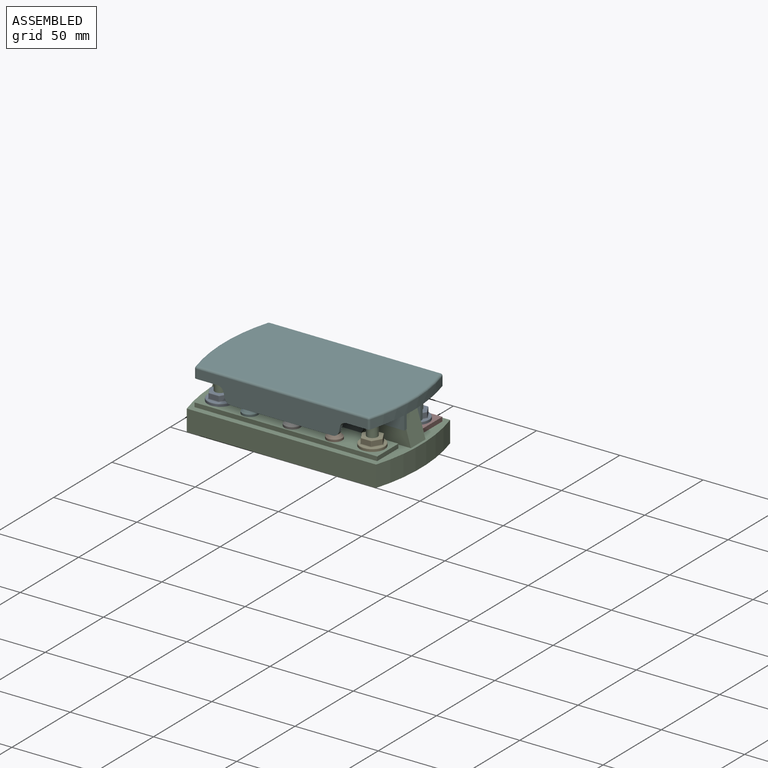
[diagram: assembled view]
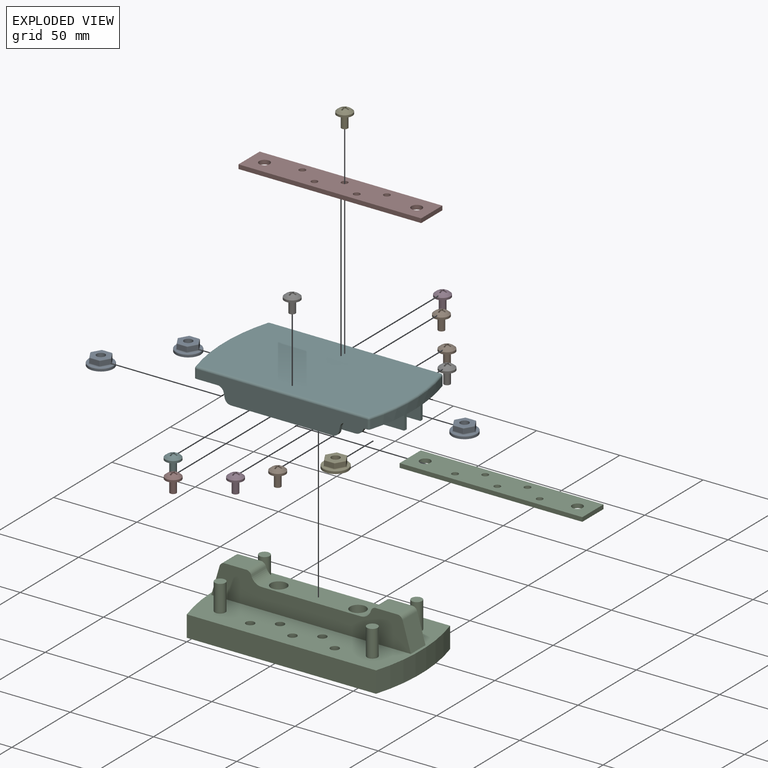
[diagram: exploded view]
GUIDED TOUR — MATED ASSEMBLY (Onshape document 580f8d0666ec9a1068392683, AutoMate assembly 580f8d0666ec9a1068392683_d71487eed5fffb27c4e7bcf7_9a2d0c5e2a98df7ca95f1406_default)

This assembly has 18 components, labeled P0..P17 below (a component is one placed occurrence of a part; the same part can appear more than once), held together by 21 mates. A mate is a constraint between two components; its type names the relative motion it leaves free:
  PARALLEL — keeps the two listed directions parallel,
  PLANAR — leaves sliding in the plane through the listed point (normal = the listed direction) and rotation about that normal free,
  REVOLUTE — leaves rotation about the listed axis free (a hinge).
Axis/direction vectors are unit vectors and 'through' points are millimeter coordinates, both in the assembly's world frame.

MATES
  1. REVOLUTE "Revolute 6": P9 <-> P15, axis (0.000, 0.000, -1.000) through (43.91, 46.80, 15.24) mm
  2. REVOLUTE "Revolute 17": P4 <-> P2, axis (0.000, 0.000, 1.000) through (102.55, 12.70, 15.24) mm
  3. PARALLEL "Parallel 1": P10 <-> P13, direction (0.000, -1.000, 0.000) through (56.83, 25.46, 12.70) mm
  4. REVOLUTE "Revolute 7": P12 <-> P15, axis (0.000, 0.000, -1.000) through (56.71, 54.42, 15.24) mm
  5. REVOLUTE "Revolute 18": P8 <-> P2, axis (0.000, 0.000, 1.000) through (11.11, 12.70, 15.24) mm
  6. REVOLUTE "Revolute 2": P15 <-> P10, axis (0.000, 0.000, 1.000) through (102.55, 50.80, 12.70) mm
  7. REVOLUTE "Revolute 16": P0 <-> P15, axis (0.000, 0.000, 1.000) through (102.55, 50.80, 15.24) mm
  8. PLANAR "Planar 1": P13 <-> P10, direction (0.000, 0.000, -1.000) through (57.07, 23.86, 12.70) mm
  9. REVOLUTE "Revolute 8": P15 <-> P17, axis (0.000, 0.000, 1.000) through (69.31, 46.80, 15.24) mm
  10. REVOLUTE "Revolute 14": P1 <-> P2, axis (0.000, 0.000, -1.000) through (82.36, 9.08, 15.24) mm
  11. REVOLUTE "Revolute 15": P16 <-> P15, axis (0.000, 0.000, 1.000) through (11.11, 50.80, 15.24) mm
  12. REVOLUTE "Revolute 1": P15 <-> P10, axis (0.000, 0.000, 1.000) through (11.11, 50.80, 12.70) mm
  13. REVOLUTE "Revolute 13": P3 <-> P2, axis (0.000, 0.000, -1.000) through (69.75, 16.70, 15.24) mm
  14. REVOLUTE "Revolute 11": P7 <-> P2, axis (0.000, 0.000, -1.000) through (44.35, 16.70, 15.24) mm
  15. REVOLUTE "Revolute 12": P6 <-> P2, axis (0.000, 0.000, -1.000) through (56.96, 9.08, 15.24) mm
  16. REVOLUTE "Revolute 5": P11 <-> P15, axis (0.000, 0.000, -1.000) through (31.31, 54.42, 15.24) mm
  17. REVOLUTE "Revolute 4": P10 <-> P2, axis (0.000, 0.000, -1.000) through (11.11, 12.70, 12.70) mm
  18. REVOLUTE "Revolute 9": P14 <-> P15, axis (0.000, 0.000, -1.000) through (82.11, 54.42, 15.24) mm
  19. REVOLUTE "Revolute 10": P2 <-> P5, axis (0.000, 0.000, 1.000) through (31.56, 9.08, 15.24) mm
  20. PLANAR "Planar 2": P13 <-> P10, direction (0.000, 1.000, 0.000) through (95.71, 63.50, 30.35) mm
  21. REVOLUTE "Revolute 3": P2 <-> P10, axis (0.000, 0.000, 1.000) through (102.55, 12.70, 12.70) mm

ASSEMBLY ORDER
  1. P13 — the base component [order verified]
  2. P12 [order verified]
  3. P6 [order verified]
  4. P15 [order verified]
  5. P9 [order verified]
  6. P17 [order verified]
  7. P3 [order verified]
  8. P7 [order verified]
  9. P8 [order verified]
  10. P4 [order verified]
  11. P16 [order verified]
  12. P0 [order verified]
  13. P2 [order verified]
  14. P14 [order verified]
  15. P11 [order verified]
  16. P10 [order verified]
  17. P5 [order verified]
  18. P1 [order verified]
Order-tag legend:
  [order verified] — this step's position reverses a verified removal order: the component was checked to insert without passing through the ones already placed.

Of the 18 components, 2 carry the full construction recipe — the FeatureScript program that regenerates the part's solid from scratch; the rest are supplied as boundary geometry only.
Because this assembly has more than 12 components, the tour below covers the 12 most significant ones individually (every recipe-attached component first, then the largest by part volume), in assembly order; the remaining 6 are summarized together in a grouped section at the end.
Each toured component is shown spotlighted twice — in the assembled view, then in the exploded view, where a leader line traces a displaced component back to its assembled socket (saturated green if recipe-attached, orange if geometry-only; every other component desaturated gray) — followed by its recipe or geometry summary and the mates that hold it.
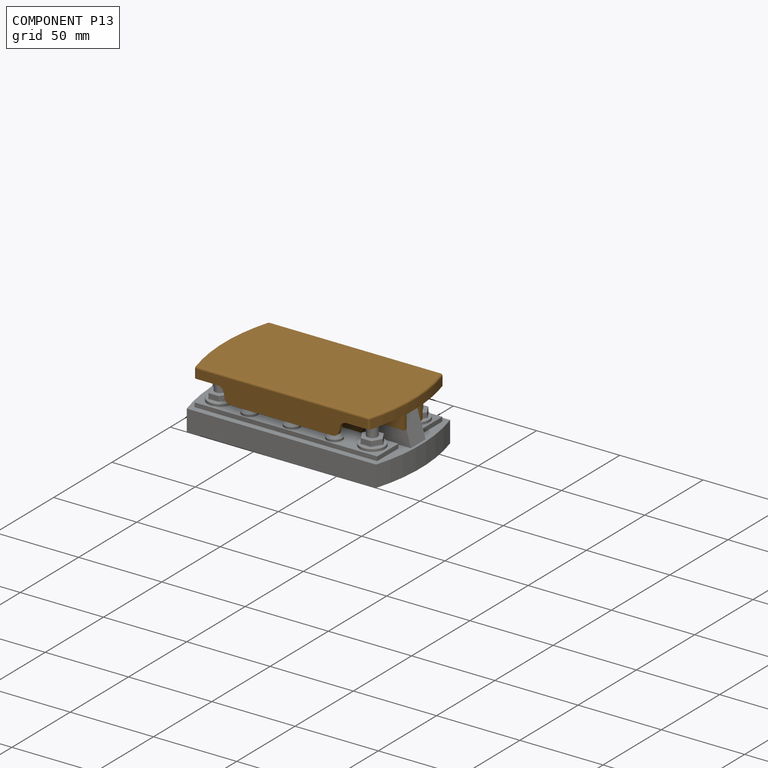
[diagram: component P13 — assembled]
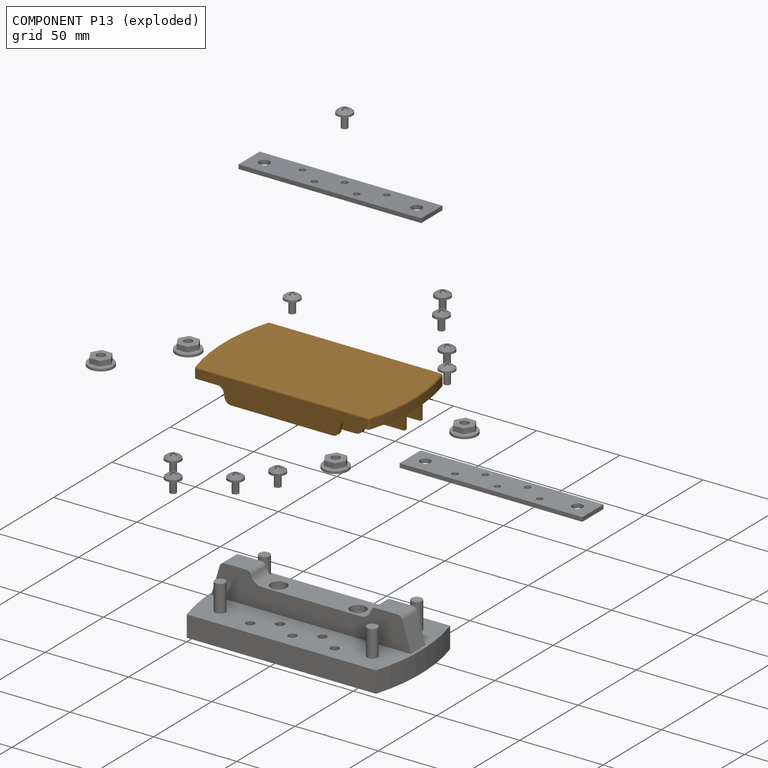
[diagram: component P13 — exploded]
COMPONENT P13 — geometry summary (no construction recipe available for this part):
  bounding box: 132.0 x 66.8 x 24.3 mm
  B-rep topology: 1 solid, 68 faces, 376 edges
  volume: 28992 mm^3 (14% of its bounding box)
  symmetry: 2-fold rotationally symmetric about the z axis; mirror-symmetric across its x mid-plane, y mid-plane
Held by: PARALLEL mate "Parallel 1" to P10; PLANAR mate "Planar 1" to P10; PLANAR mate "Planar 2" to P10.
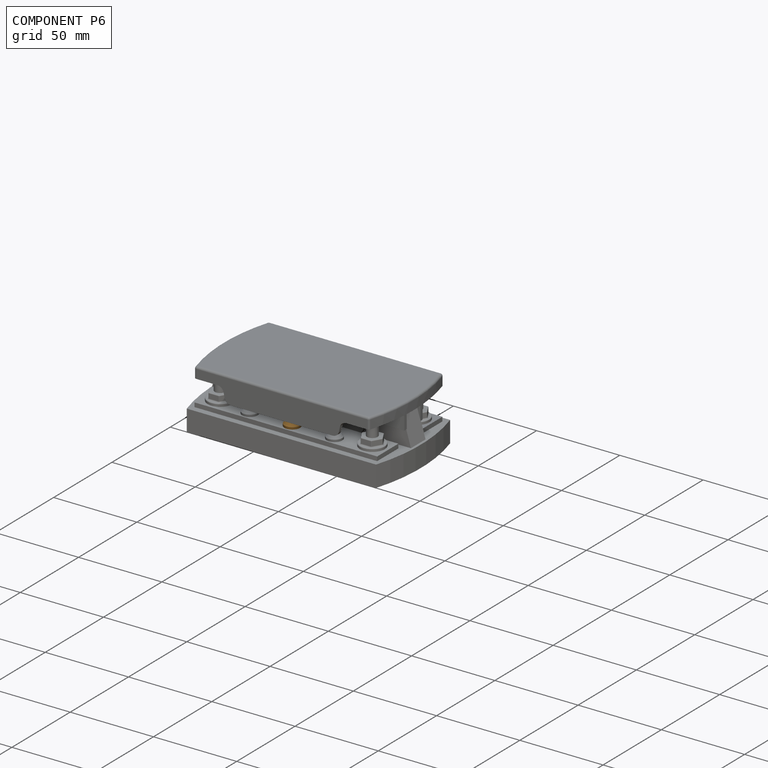
[diagram: component P6 — assembled]
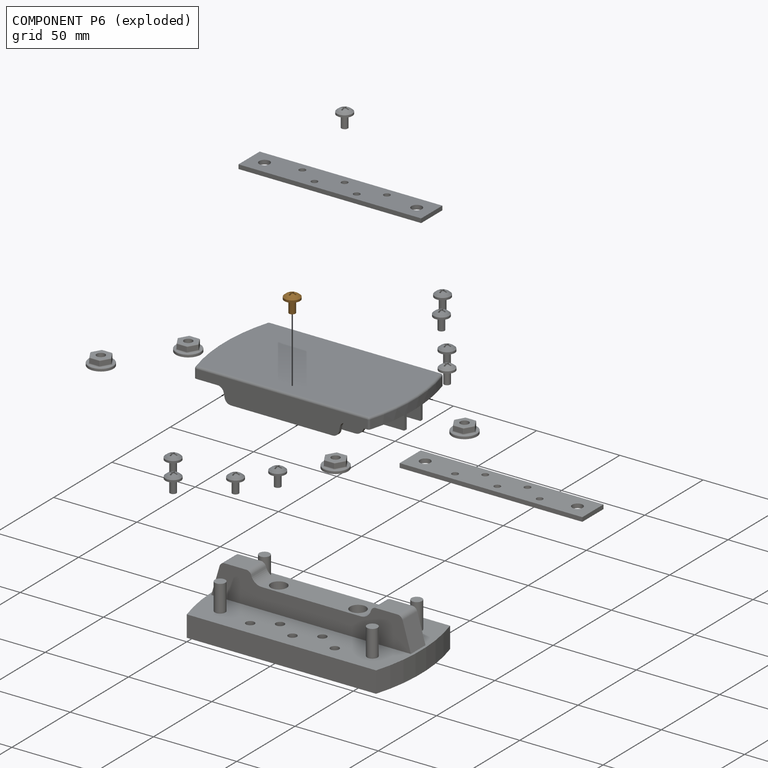
[diagram: component P6 — exploded]
COMPONENT P6 — geometry summary (no construction recipe available for this part):
  bounding box: 10.8 x 9.3 x 9.3 mm
  B-rep topology: 1 solid, 26 faces, 136 edges
  volume: 237 mm^3 (25% of its bounding box)
  symmetry: 4-fold rotationally symmetric about the z axis; mirror-symmetric across its x mid-plane, y mid-plane
Held by: REVOLUTE mate "Revolute 12" to P2.
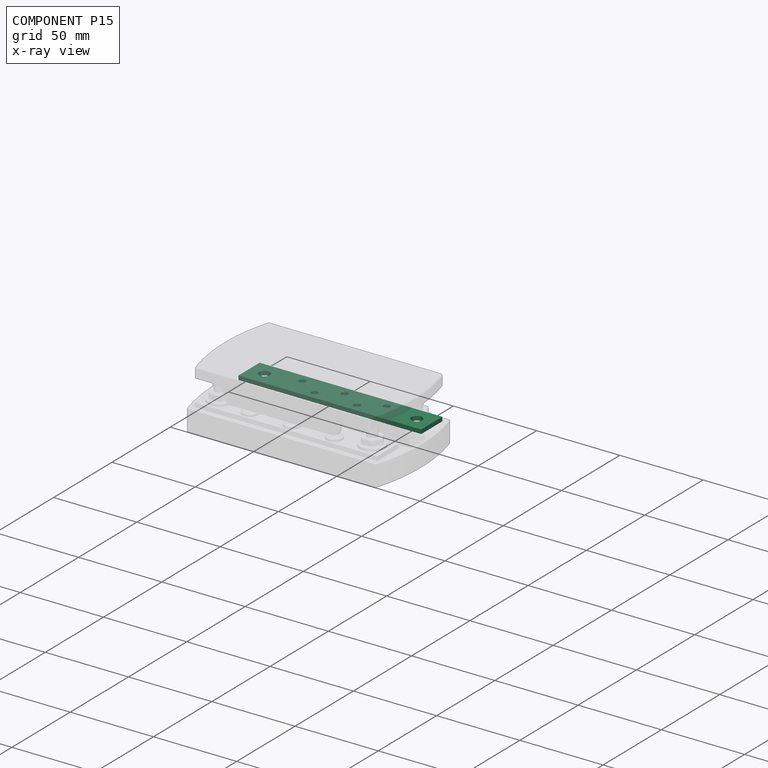
[diagram: component P15 — x-ray view]
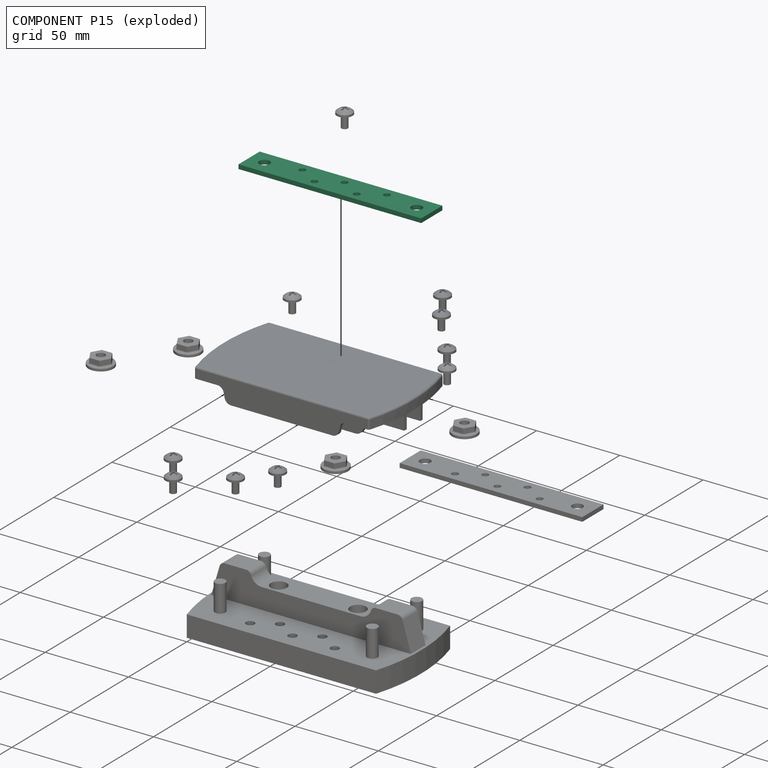
[diagram: component P15 — exploded]
COMPONENT P15 — same part as P2 (CADFS 00299274); its construction recipe is shown at P2.
Held by: REVOLUTE mate "Revolute 6" to P9; REVOLUTE mate "Revolute 7" to P12; REVOLUTE mate "Revolute 2" to P10; REVOLUTE mate "Revolute 16" to P0; REVOLUTE mate "Revolute 8" to P17; REVOLUTE mate "Revolute 15" to P16; REVOLUTE mate "Revolute 1" to P10; REVOLUTE mate "Revolute 5" to P11; REVOLUTE mate "Revolute 9" to P14.
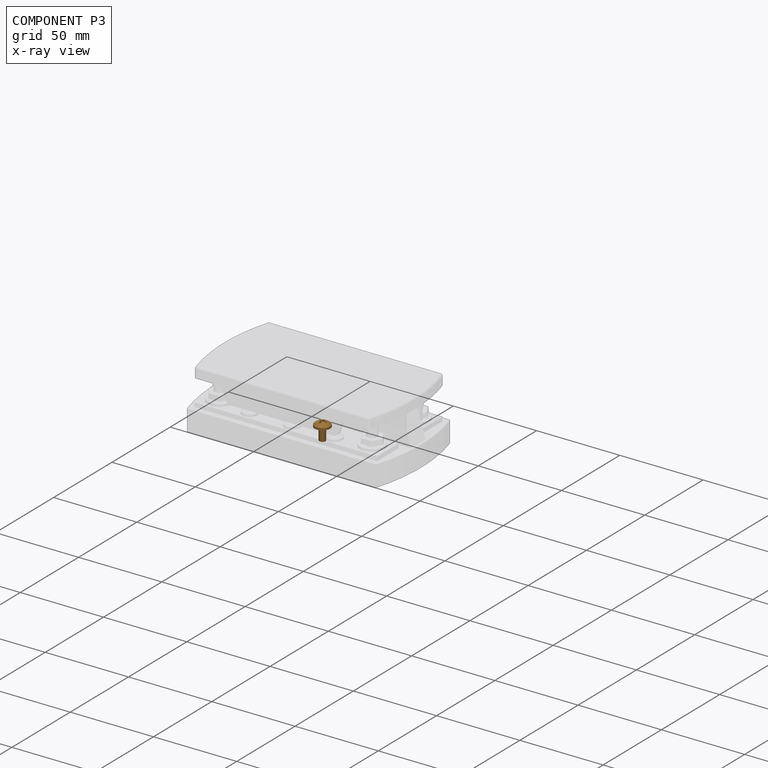
[diagram: component P3 — x-ray view]
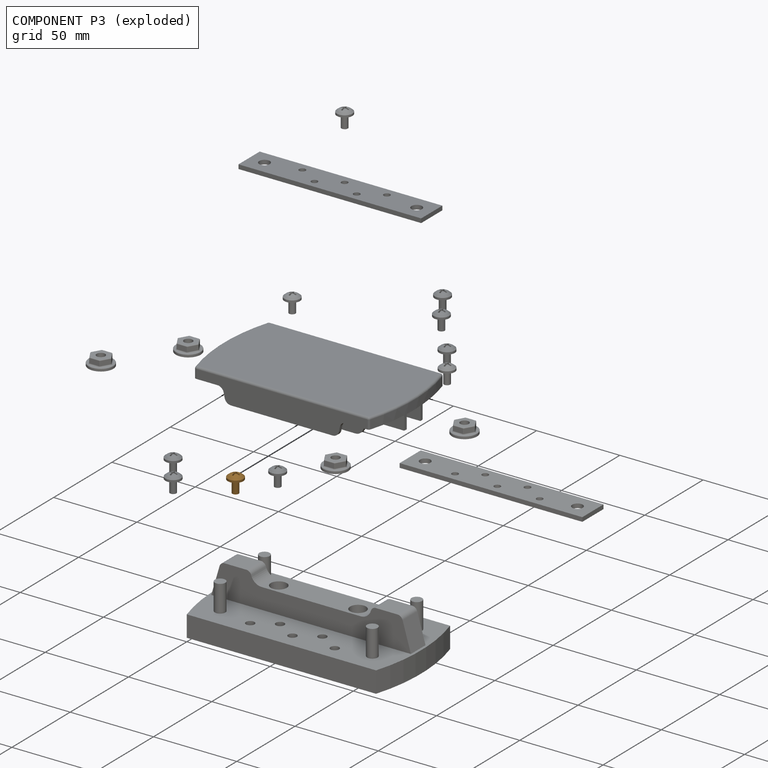
[diagram: component P3 — exploded]
COMPONENT P3 — geometry summary (no construction recipe available for this part):
  bounding box: 10.8 x 9.3 x 9.3 mm
  B-rep topology: 1 solid, 26 faces, 136 edges
  volume: 237 mm^3 (25% of its bounding box)
  symmetry: 4-fold rotationally symmetric about the z axis; mirror-symmetric across its x mid-plane, y mid-plane
Held by: REVOLUTE mate "Revolute 13" to P2.
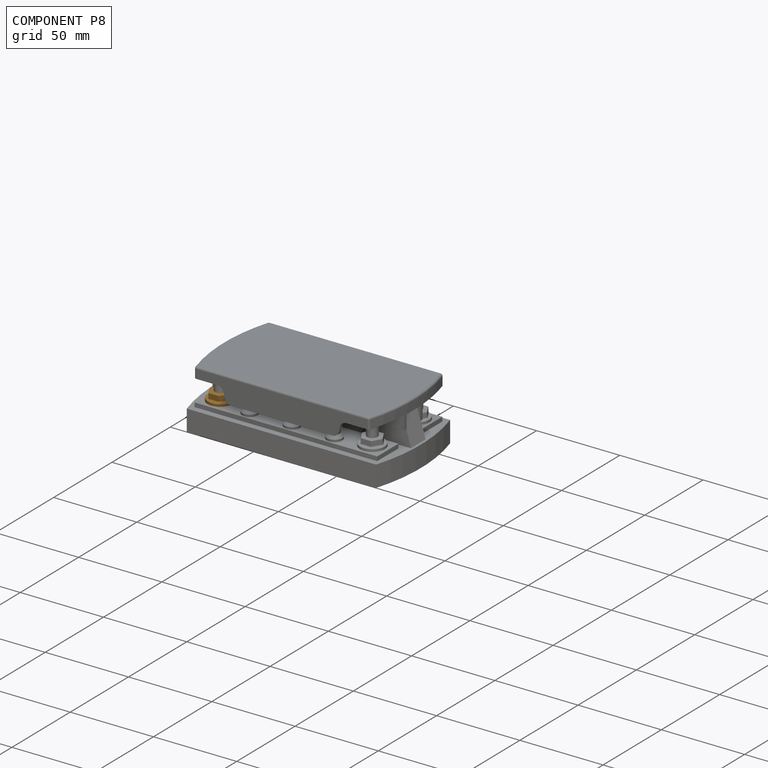
[diagram: component P8 — assembled]
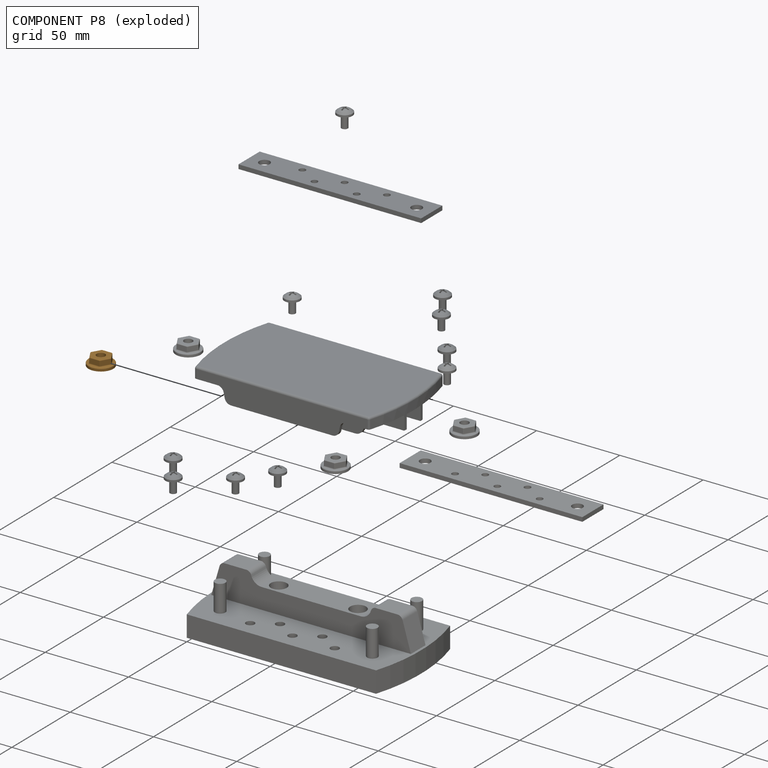
[diagram: component P8 — exploded]
COMPONENT P8 — geometry summary (no construction recipe available for this part):
  bounding box: 16.1 x 16.1 x 5.5 mm
  B-rep topology: 1 solid, 42 faces, 176 edges
  volume: 578 mm^3 (40% of its bounding box)
  symmetry: 6-fold rotationally symmetric about the z axis; mirror-symmetric across its x mid-plane, y mid-plane
Held by: REVOLUTE mate "Revolute 18" to P2.
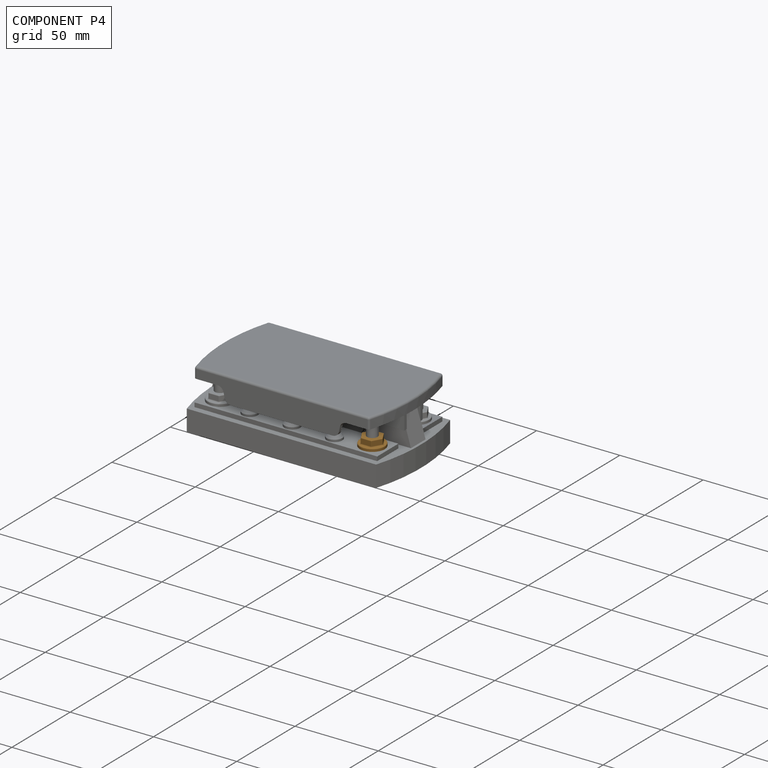
[diagram: component P4 — assembled]
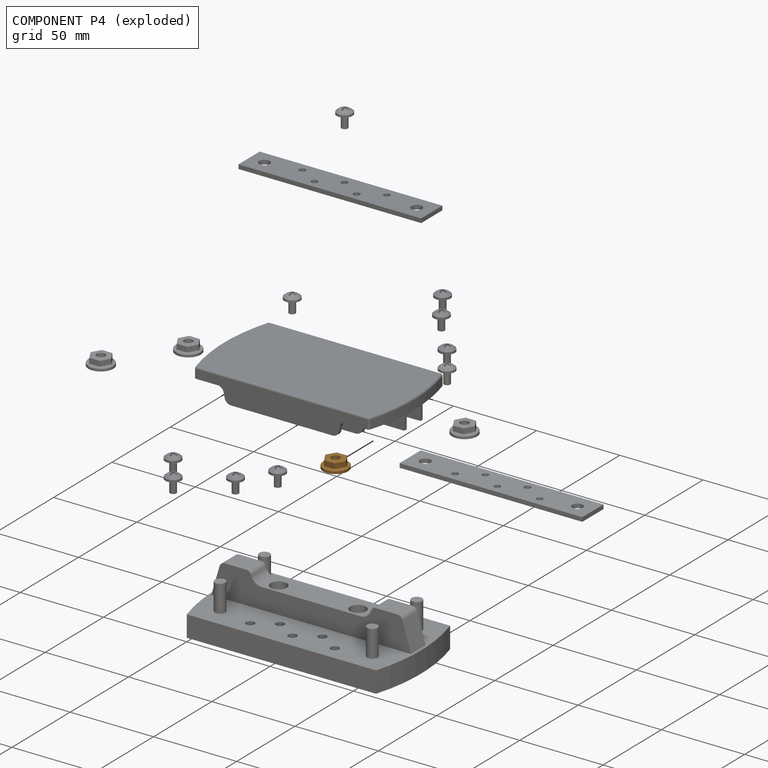
[diagram: component P4 — exploded]
COMPONENT P4 — geometry summary (no construction recipe available for this part):
  bounding box: 16.1 x 16.1 x 5.5 mm
  B-rep topology: 1 solid, 42 faces, 176 edges
  volume: 578 mm^3 (40% of its bounding box)
  symmetry: 6-fold rotationally symmetric about the z axis; mirror-symmetric across its x mid-plane, y mid-plane
Held by: REVOLUTE mate "Revolute 17" to P2.
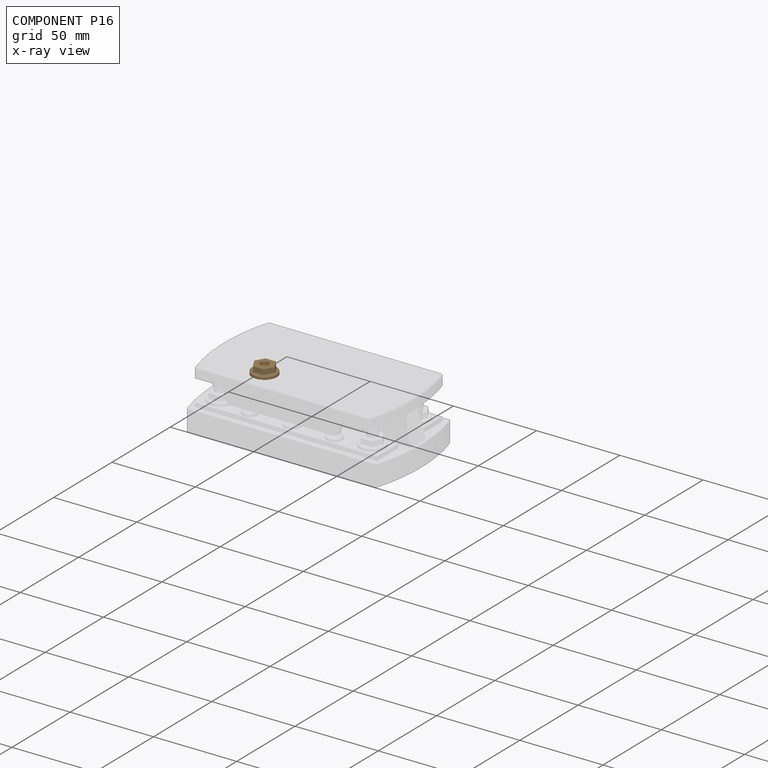
[diagram: component P16 — x-ray view]
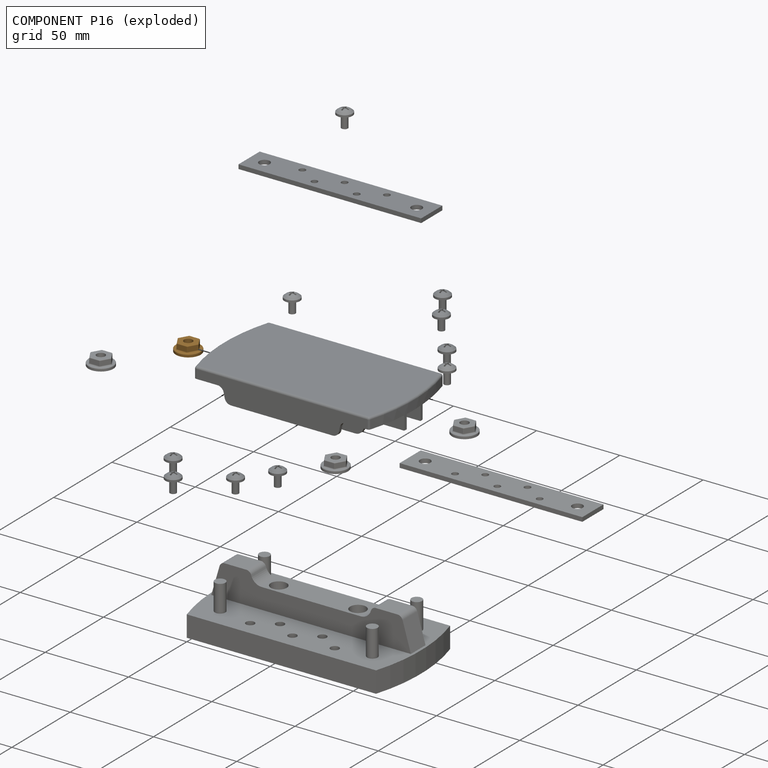
[diagram: component P16 — exploded]
COMPONENT P16 — geometry summary (no construction recipe available for this part):
  bounding box: 16.1 x 16.1 x 5.5 mm
  B-rep topology: 1 solid, 42 faces, 176 edges
  volume: 578 mm^3 (40% of its bounding box)
  symmetry: 6-fold rotationally symmetric about the z axis; mirror-symmetric across its x mid-plane, y mid-plane
Held by: REVOLUTE mate "Revolute 15" to P15.
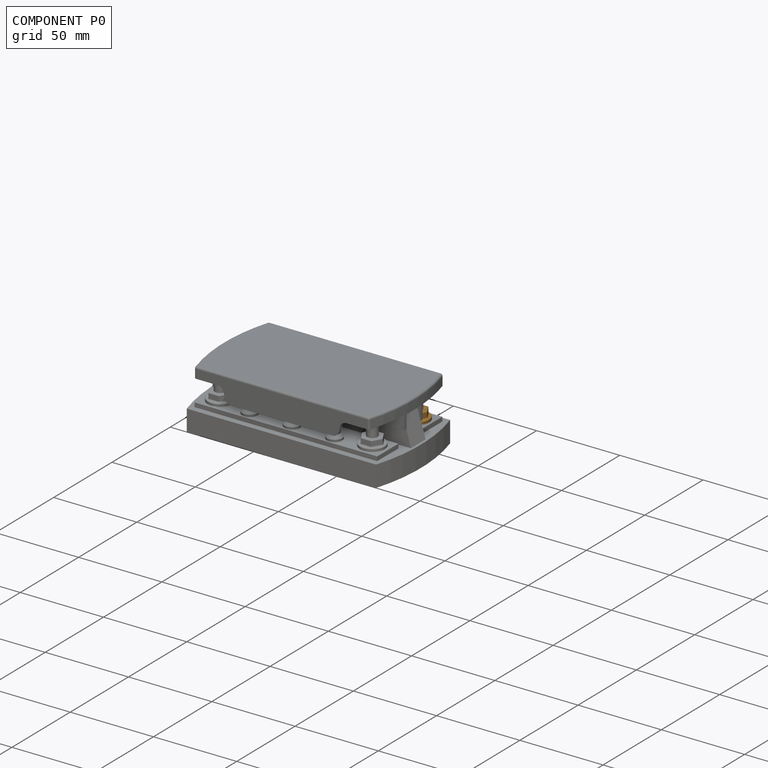
[diagram: component P0 — assembled]
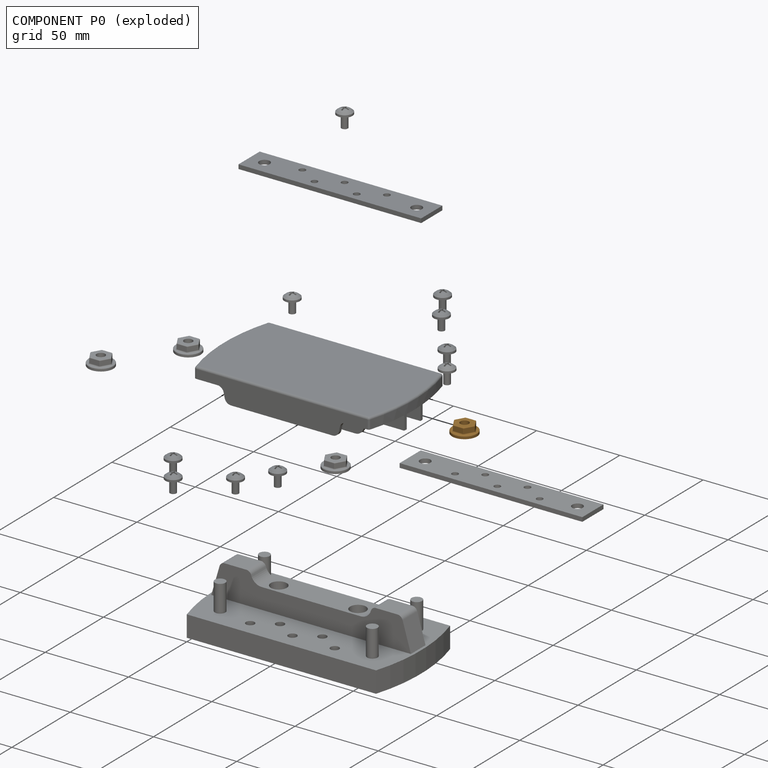
[diagram: component P0 — exploded]
COMPONENT P0 — geometry summary (no construction recipe available for this part):
  bounding box: 16.1 x 16.1 x 5.5 mm
  B-rep topology: 1 solid, 42 faces, 176 edges
  volume: 578 mm^3 (40% of its bounding box)
  symmetry: 6-fold rotationally symmetric about the z axis; mirror-symmetric across its x mid-plane, y mid-plane
Held by: REVOLUTE mate "Revolute 16" to P15.
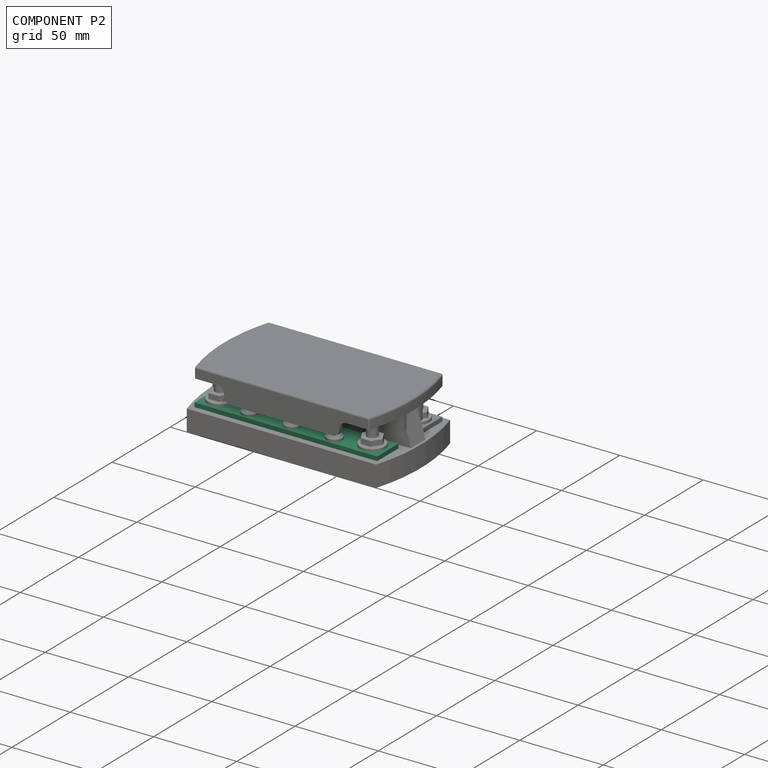
[diagram: component P2 — assembled]
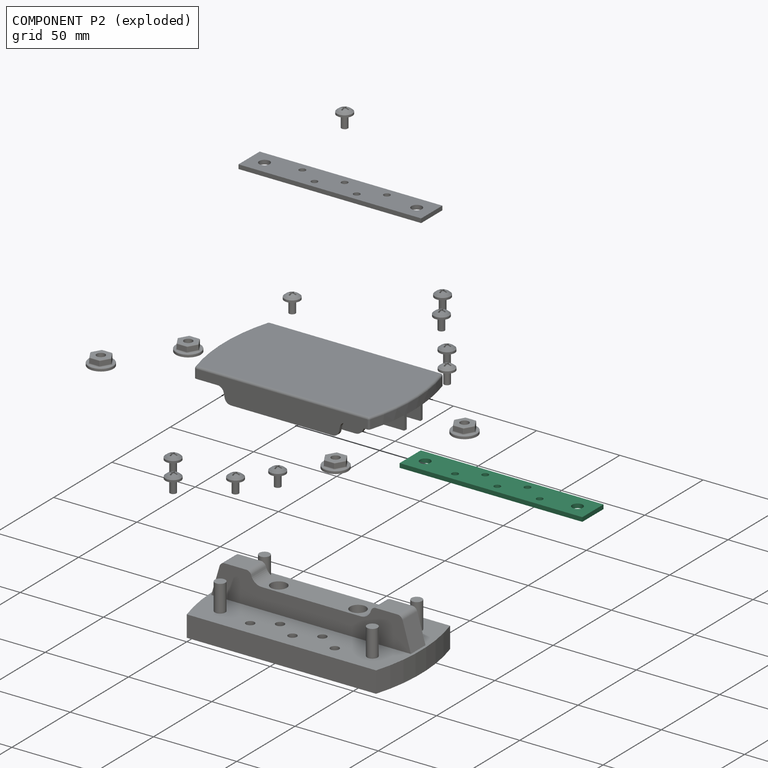
[diagram: component P2 — exploded]
COMPONENT P2 — recipe-attached (CADFS 00299274, mesh-verified: the recipe's output STEP matches this component's geometry to below the mesh-comparison resolution (tessellation chordal tolerance ~0.167 mm)).
Held by: REVOLUTE mate "Revolute 17" to P4; REVOLUTE mate "Revolute 18" to P8; REVOLUTE mate "Revolute 14" to P1; REVOLUTE mate "Revolute 13" to P3; REVOLUTE mate "Revolute 11" to P7; REVOLUTE mate "Revolute 12" to P6; REVOLUTE mate "Revolute 4" to P10; REVOLUTE mate "Revolute 10" to P5; REVOLUTE mate "Revolute 3" to P10.
Construction recipe (FeatureScript — the CAD program that rebuilds this solid; sketch coordinates are in the units given by the * unit suffixes, e.g. mm):

FeatureScript 1634;
import(path : "onshape/std/geometry.fs", version : "1634.0");
import(path : "onshape/std/common.fs", version : "1634.0");
const mm = millimeter;
const VERTEX = EntityType.VERTEX;
const EDGE = EntityType.EDGE;
const FACE = EntityType.FACE;
const BODY = EntityType.BODY;
function v(x, y){return vector(x, y);}
function OD(order){return orderDisambiguation(order);}
function OSD(set){return originalSetDisambiguation(set);}
function TD(topology){return topologyDisambiguation(topology);}
function TDD(query){return trueDependencyDisambiguation(query);}
function sQuery(a, b, c) {return sketchEntityQuery(a, b, c);}

annotation { "Feature Type Name" : "Feature", "Feature Type Description" : "" }
export const myFeature = defineFeature(function(context is Context, id is Id, definition is map)
    precondition{}
    {
        {
            var Q0;
            Q0=qCreatedBy(makeId("Top.planeOp"),FACE);
            var sketch = newSketch(context, id + "F0", { "sketchPlane" : qUnion([Q0])});
            skLineSegment(sketch, "E0.bottom", {"start": v(0, 0) * mm, "end": v(109.73, 0) * mm});
            skLineSegment(sketch, "E0.top", {"start": v(0, 18.16) * mm, "end": v(109.73, 18.16) * mm});
            skLineSegment(sketch, "E0.left", {"start": v(0, 0) * mm, "end": v(0, 18.16) * mm});
            skLineSegment(sketch, "E0.right", {"start": v(109.73, 0) * mm, "end": v(109.73, 18.16) * mm});
            skSolve(sketch);
        }
        {
            var Q0;
            Q0 = qSketchRegion(id + "F0", true);
            extrude(context, id + "F1", {"entities" : qUnion([Q0]), "depth" : 2.54 * mm});
        }
        {
            var Q0;
            Q0=makeQuery(id+"F1.opExtrude","CAP_FACE",FACE,{"disambiguationData":[OSD([sQuery(id+"F0.wireOp",EDGE,"E0.bottom"),sQuery(id+"F0.wireOp",EDGE,"E0.top"),sQuery(id+"F0.wireOp",EDGE,"E0.left"),sQuery(id+"F0.wireOp",EDGE,"E0.right")])],"isStart":false});
            var sketch = newSketch(context, id + "F2", { "sketchPlane" : qUnion([Q0])});
            skCircle(sketch, "E1", {"center": v(9.27, 9.08) * mm, "radius": 3.18 * mm});
            skCircle(sketch, "E2", {"center": v(100.71, 9.08) * mm, "radius": 3.18 * mm});
            skLineSegment(sketch, "E3", {"start": v(0, 9.08) * mm, "end": v(9.27, 9.08) * mm, "construction": true});
            skSolve(sketch);
        }
        {
            var Q0;
            Q0 = qSketchRegion(id + "F2", true);
            extrude(context, id + "F3", {"entities" : qUnion([Q0]), "operationType" : NewBodyOperationType.REMOVE, "endBound" : BoundingType.THROUGH_ALL, "oppositeDirection" : true, "depth" : 25.4 * mm});
        }
        {
            var Q0;
            Q0=makeQuery(id+"F1.opExtrude","CAP_FACE",FACE,{"disambiguationData":[OSD([sQuery(id+"F0.wireOp",EDGE,"E0.bottom"),sQuery(id+"F0.wireOp",EDGE,"E0.top"),sQuery(id+"F0.wireOp",EDGE,"E0.left"),sQuery(id+"F0.wireOp",EDGE,"E0.right")])],"isStart":false});
            var sketch = newSketch(context, id + "F4", { "sketchPlane" : qUnion([Q0])});
            skPoint(sketch, "E4", {"position": v(29.46, 12.7) * mm});
            skPoint(sketch, "E5", {"position": v(42.07, 5.08) * mm});
            skPoint(sketch, "E6", {"position": v(54.86, 12.7) * mm});
            skPoint(sketch, "E7", {"position": v(67.47, 5.08) * mm});
            skPoint(sketch, "E8", {"position": v(80.26, 12.7) * mm});
            skLineSegment(sketch, "E9", {"start": v(54.86, 0) * mm, "end": v(54.86, 12.7) * mm, "construction": true});
            skSolve(sketch);
        }
        {
            var Q0;
            Q0=sQuery(id+"F4.wireOp",VERTEX,"E4");
            var Q1;
            Q1=sQuery(id+"F4.wireOp",VERTEX,"E5");
            var Q2;
            Q2=sQuery(id+"F4.wireOp",VERTEX,"E6");
            var Q3;
            Q3=sQuery(id+"F4.wireOp",VERTEX,"E7");
            var Q4;
            Q4=sQuery(id+"F4.wireOp",VERTEX,"E8");
            var Q5;
            Q5=makeQuery(id+"F1.opExtrude","SWEPT_BODY",BODY,{"disambiguationData":[OSD([sQuery(id+"F0.wireOp",EDGE,"E0.bottom"),sQuery(id+"F0.wireOp",EDGE,"E0.top"),sQuery(id+"F0.wireOp",EDGE,"E0.left"),sQuery(id+"F0.wireOp",EDGE,"E0.right")])]});
            hole(context, id + "F5", {"style" : HoleStyle.SIMPLE, "endStyle" : HoleEndStyle.THROUGH, "standardTappedOrClearance" : lookupTablePath({ "standard" : "ANSI", "engagement" : "75%", "pitch" : "24 tpi", "size" : "#10", "type" : "Tapped" }), "standardBlindInLast" : lookupTablePath({ "standard" : "ANSI", "engagement" : "75%", "pitch" : "24 tpi", "size" : "#10", "type" : "Tapped" }), "holeDiameter" : 3.8 * mm, "showTappedDepth" : true, "isTappedThrough" : true, "tappedDepth" : 2.77 * mm, "tapClearance" : 3, "startFromSketch" : true, "locations" : qUnion([Q0, Q1, Q2, Q3, Q4]), "scope" : qUnion([Q5]), "majorDiameter" : 4.83 * mm});
        }
    });
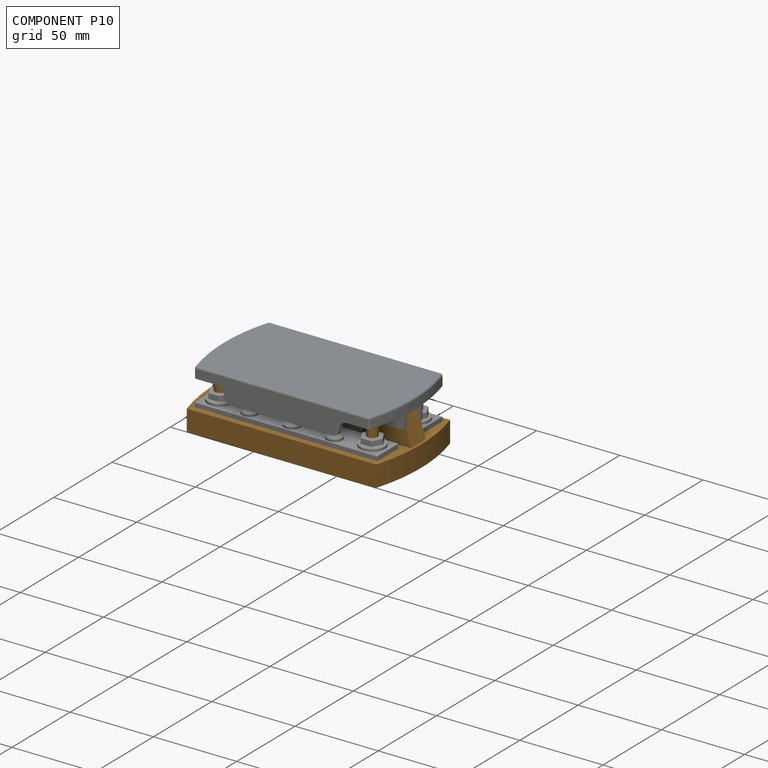
[diagram: component P10 — assembled]
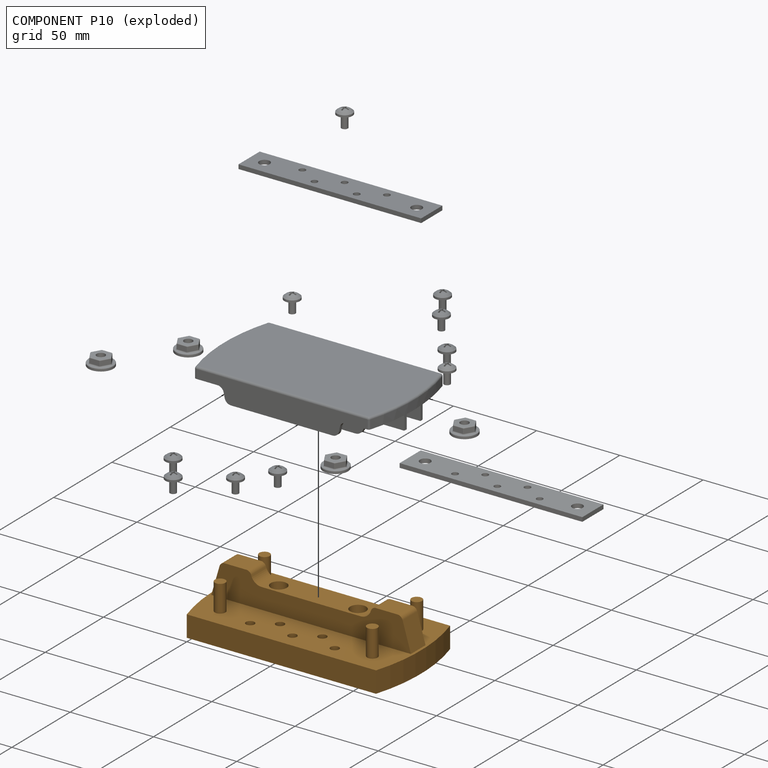
[diagram: component P10 — exploded]
COMPONENT P10 — geometry summary (no construction recipe available for this part):
  bounding box: 123.2 x 63.5 x 32.0 mm
  B-rep topology: 1 solid, 53 faces, 234 edges
  volume: 116799 mm^3 (47% of its bounding box)
  symmetry: 2-fold rotationally symmetric about the z axis; mirror-symmetric across its x mid-plane, y mid-plane
Held by: PARALLEL mate "Parallel 1" to P13; REVOLUTE mate "Revolute 2" to P15; PLANAR mate "Planar 1" to P13; REVOLUTE mate "Revolute 1" to P15; REVOLUTE mate "Revolute 4" to P2; PLANAR mate "Planar 2" to P13; REVOLUTE mate "Revolute 3" to P2.
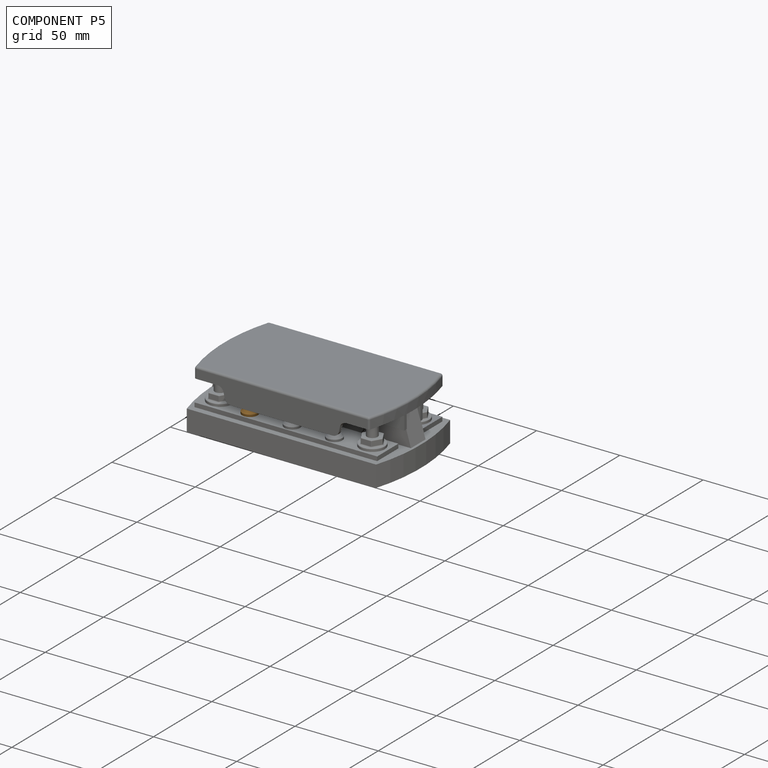
[diagram: component P5 — assembled]
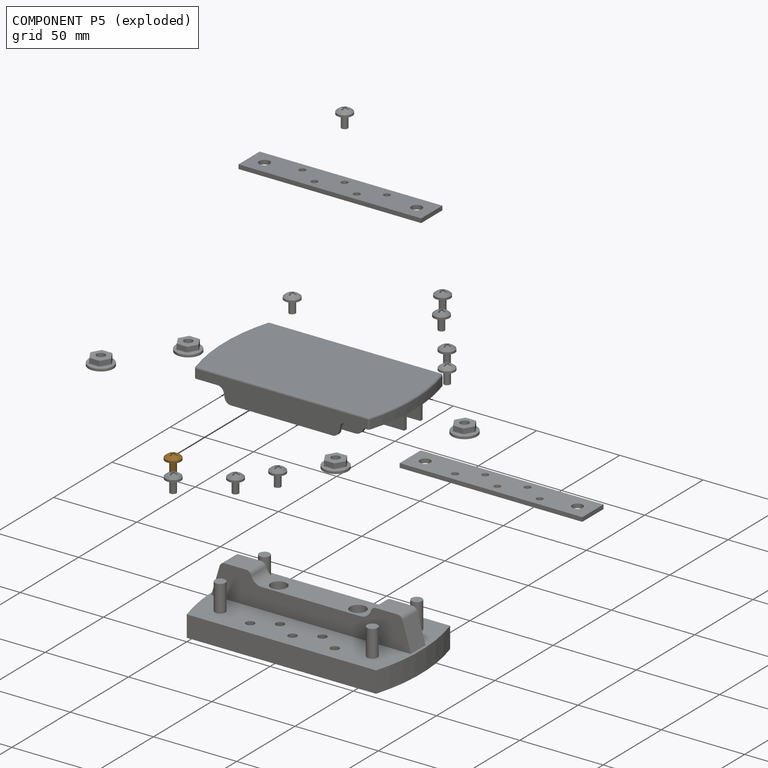
[diagram: component P5 — exploded]
COMPONENT P5 — geometry summary (no construction recipe available for this part):
  bounding box: 10.8 x 9.3 x 9.3 mm
  B-rep topology: 1 solid, 26 faces, 136 edges
  volume: 237 mm^3 (25% of its bounding box)
  symmetry: 4-fold rotationally symmetric about the z axis; mirror-symmetric across its x mid-plane, y mid-plane
Held by: REVOLUTE mate "Revolute 10" to P2.
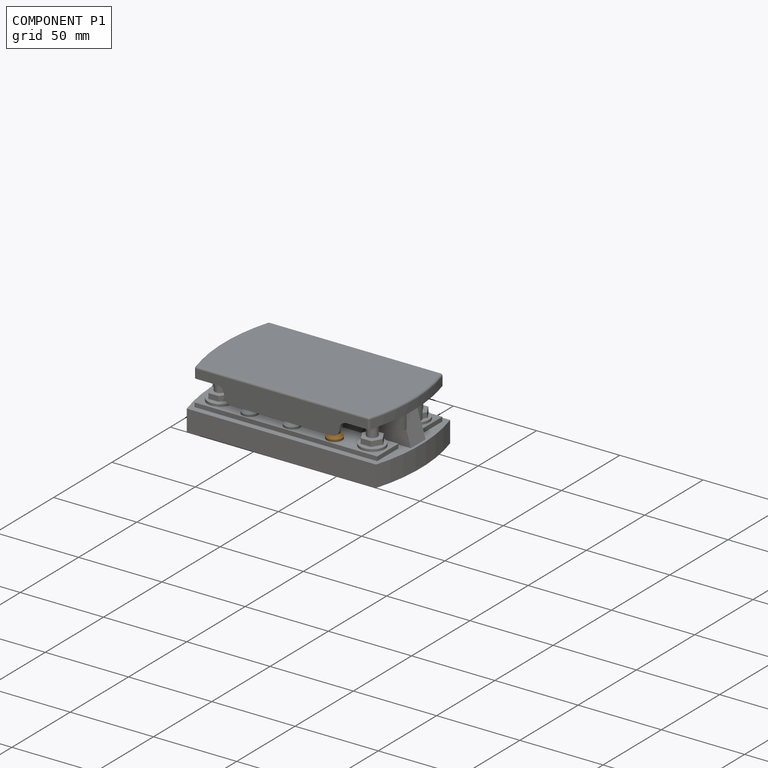
[diagram: component P1 — assembled]
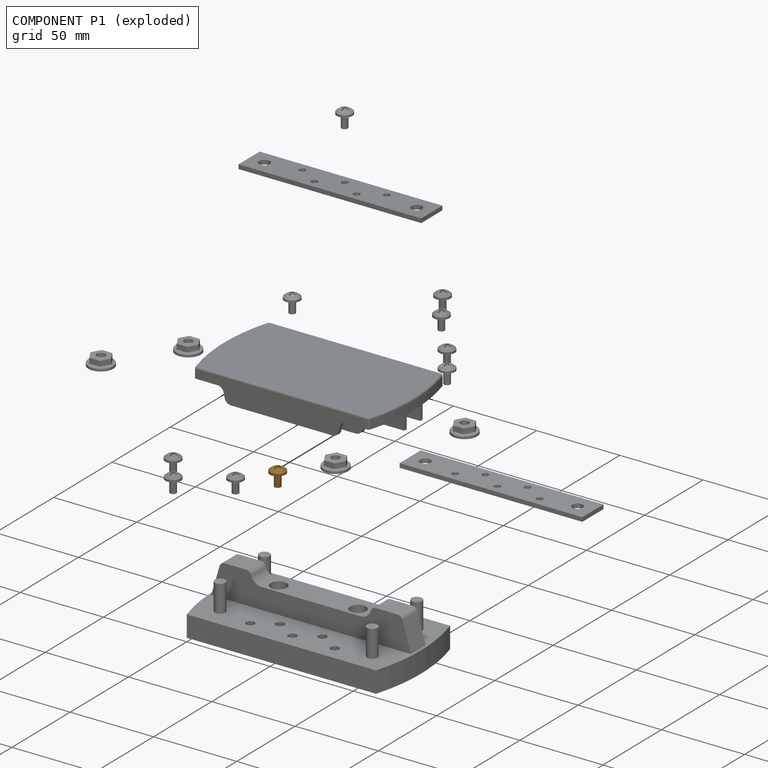
[diagram: component P1 — exploded]
COMPONENT P1 — geometry summary (no construction recipe available for this part):
  bounding box: 10.8 x 9.3 x 9.3 mm
  B-rep topology: 1 solid, 26 faces, 136 edges
  volume: 237 mm^3 (25% of its bounding box)
  symmetry: 4-fold rotationally symmetric about the z axis; mirror-symmetric across its x mid-plane, y mid-plane
Held by: REVOLUTE mate "Revolute 14" to P2.
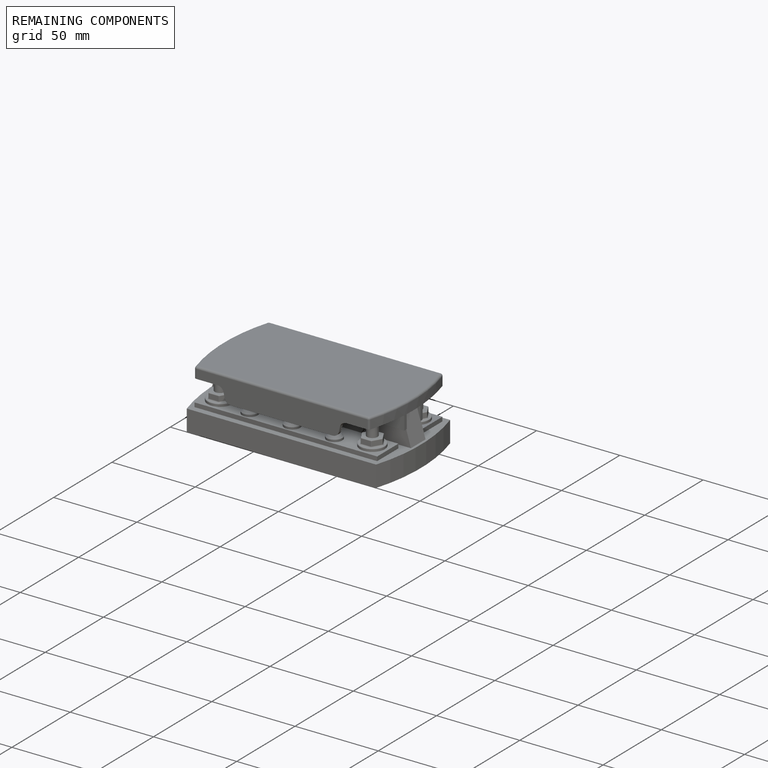
[diagram: remaining components — assembled]
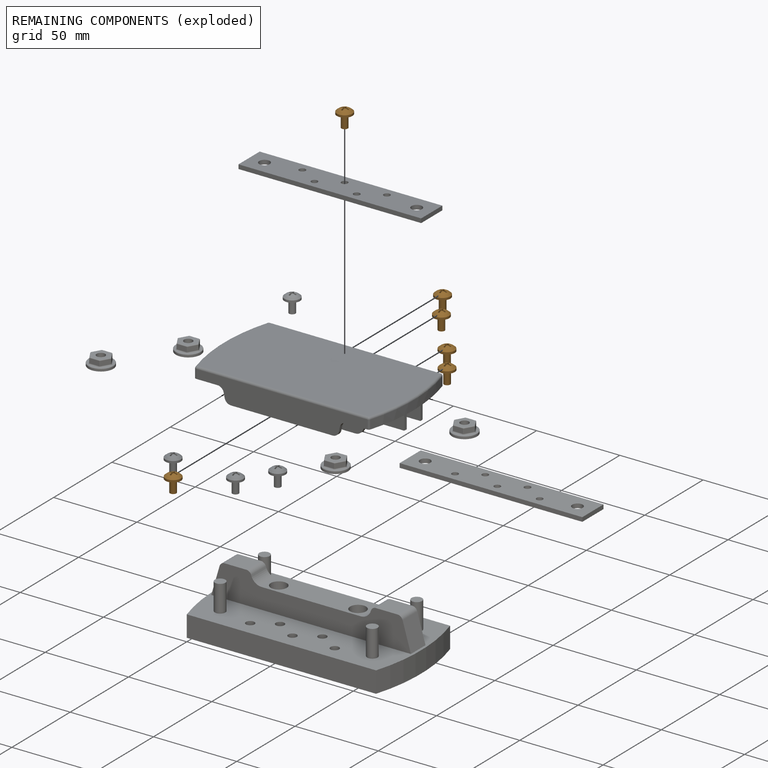
[diagram: remaining components — exploded]
REMAINING COMPONENTS (grouped) — the 6 components below fall outside the per-component tour by the significance rule stated above; both spotlight views highlight the whole group.
  P12: bounding box 10.8 x 9.3 x 9.3 mm, volume 237 mm^3. Held by: REVOLUTE mate "Revolute 7" to P15.
  P9: bounding box 10.8 x 9.3 x 9.3 mm, volume 237 mm^3. Held by: REVOLUTE mate "Revolute 6" to P15.
  P17: bounding box 10.8 x 9.3 x 9.3 mm, volume 237 mm^3. Held by: REVOLUTE mate "Revolute 8" to P15.
  P7: bounding box 10.8 x 9.3 x 9.3 mm, volume 237 mm^3. Held by: REVOLUTE mate "Revolute 11" to P2.
  P14: bounding box 10.8 x 9.3 x 9.3 mm, volume 237 mm^3. Held by: REVOLUTE mate "Revolute 9" to P15.
  P11: bounding box 10.8 x 9.3 x 9.3 mm, volume 237 mm^3. Held by: REVOLUTE mate "Revolute 5" to P15.
PROVENANCE & LICENSES
Assembly (occurrences, transforms, mates, per-part STEP geometry): AutoMate dataset, Zenodo record 7776208, CC0.
Construction recipes: CADFS (HuggingFace VladPyatov/CADFS, CC-BY-4.0, layered over the ABC dataset), FeatureScript reconstruction programs keyed by ABC model id.
Join: ABC meta listings map ABC model id -> Onshape documentId; within a shared document, parts are matched by geometric signature (bounding-box dims + volume at 0.1% relative tolerance, exact B-rep face/solid counts).
Verification: 2 of this assembly's 18 components carry a recipe attachment, and every attachment is mesh-verified: the CADFS STEP and the AutoMate member STEP were compared as meshes in their shared local frame (symmetric sampled-point-to-mesh distance); worst across the 2 attachments: below the mesh-comparison resolution (tessellation chordal tolerance ~0.167 mm) on a 111 mm part.
Renders: orthographic iso camera (az 35 / el 25); the floor grid conveys scale (grid pitch printed in each image; no ruler). In the exploded view each component is displaced by its stored offset vector: the offsets alone carry the explosion direction (mate normal/axis signs are not orientation cues and do not encode it), and separation distances are assigned per mate-chain, not proportionally to assembly-order depth.
